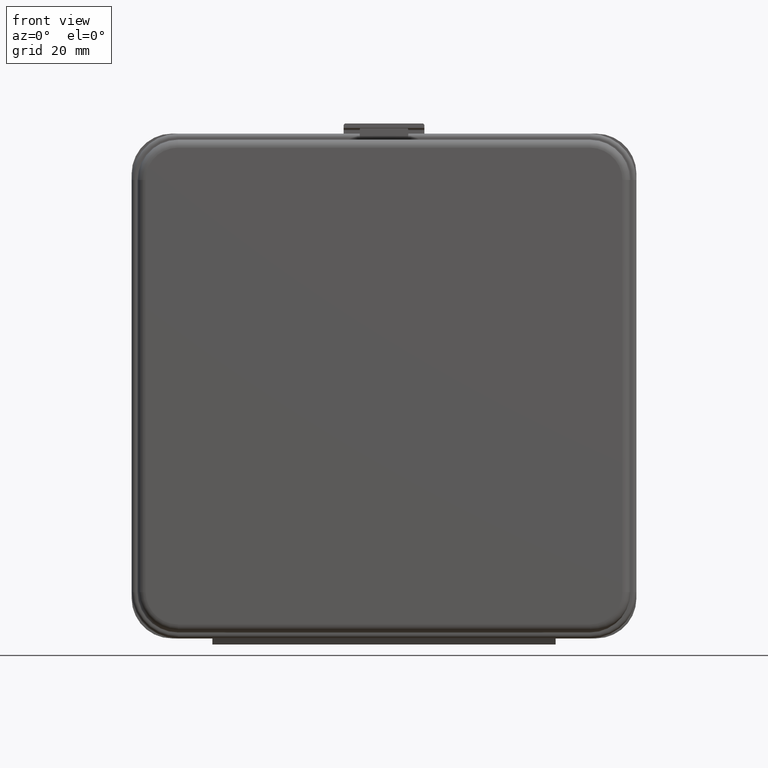
[diagram: clean part render]
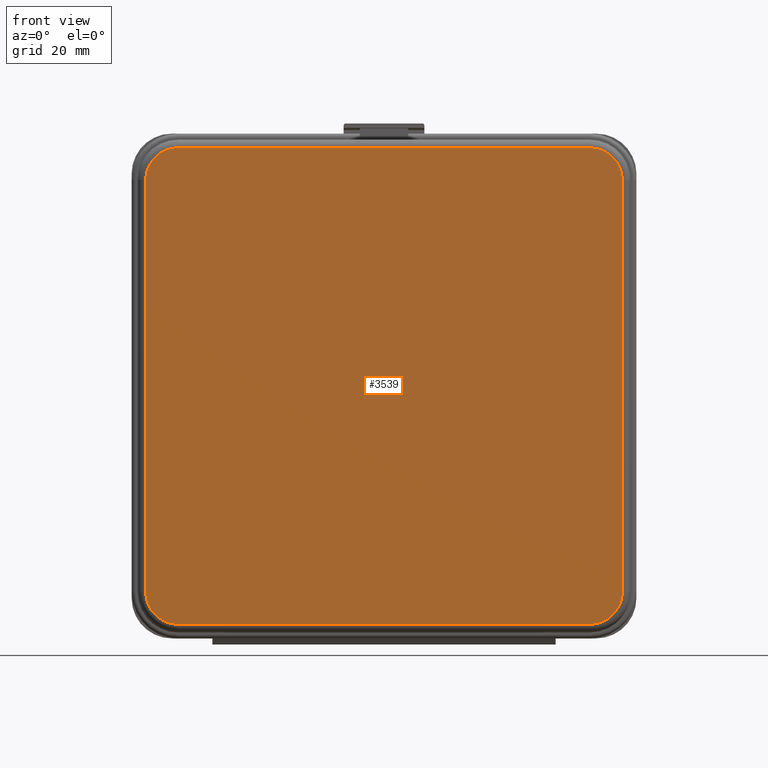
[diagram: same view with one face highlighted and labeled with its STEP entity id]
A machine part, front view. The second image highlights one B-rep face of the part: STEP entity #3539.
In plain terms, the highlighted planar face has unit normal (0, 1, 0).
Its self-contained STEP definition (entity closure, byte-faithful):
#35 = CARTESIAN_POINT ( 'NONE',  ( 0.0000000000000000000, 0.0000000000000000000, 0.0000000000000000000 ) ) ;
#42 = VERTEX_POINT ( 'NONE', #571 ) ;
#63 = CARTESIAN_POINT ( 'NONE',  ( 51.00000000000003553, 0.0000000000000000000, 59.00000000000000000 ) ) ;
#65 = CARTESIAN_POINT ( 'NONE',  ( 0.0000000000000000000, 0.0000000000000000000, -59.00000000000000000 ) ) ;
#197 = CARTESIAN_POINT ( 'NONE',  ( -51.00000000000000000, 0.0000000000000000000, -59.00000000000000000 ) ) ;
#212 = DIRECTION ( 'NONE',  ( 0.0000000000000000000, 0.0000000000000000000, 1.000000000000000000 ) ) ;
#247 = VERTEX_POINT ( 'NONE', #4258 ) ;
#292 = EDGE_CURVE ( 'NONE', #4314, #42, #560, .T. ) ;
#315 = CARTESIAN_POINT ( 'NONE',  ( 51.00000000000000711, 0.0000000000000000000, -51.00000000000000000 ) ) ;
#423 = AXIS2_PLACEMENT_3D ( 'NONE', #789, #3544, #212 ) ;
#560 = LINE ( 'NONE', #951, #2782 ) ;
#562 = EDGE_CURVE ( 'NONE', #42, #3775, #3146, .T. ) ;
#568 = ORIENTED_EDGE ( 'NONE', *, *, #3683, .T. ) ;
#571 = CARTESIAN_POINT ( 'NONE',  ( -50.99999999999997868, 0.0000000000000000000, 59.00000000000000000 ) ) ;
#703 = VECTOR ( 'NONE', #837, 1000.000000000000000 ) ;
#735 = DIRECTION ( 'NONE',  ( 0.0000000000000000000, 1.000000000000000000, 0.0000000000000000000 ) ) ;
#789 = CARTESIAN_POINT ( 'NONE',  ( -51.00000000000000000, 0.0000000000000000000, -51.00000000000000000 ) ) ;
#792 = ORIENTED_EDGE ( 'NONE', *, *, #885, .T. ) ;
#829 = AXIS2_PLACEMENT_3D ( 'NONE', #3105, #1789, #1443 ) ;
#837 = DIRECTION ( 'NONE',  ( 2.275047181608927151E-16, -0.0000000000000000000, 1.000000000000000000 ) ) ;
#858 = LINE ( 'NONE', #1869, #703 ) ;
#885 = EDGE_CURVE ( 'NONE', #3775, #2556, #2658, .T. ) ;
#938 = EDGE_CURVE ( 'NONE', #2556, #1856, #1822, .T. ) ;
#951 = CARTESIAN_POINT ( 'NONE',  ( 0.0000000000000000000, 0.0000000000000000000, 59.00000000000000000 ) ) ;
#999 = DIRECTION ( 'NONE',  ( -1.706285386206695733E-16, 0.0000000000000000000, -1.000000000000000000 ) ) ;
#1110 = VERTEX_POINT ( 'NONE', #3948 ) ;
#1205 = DIRECTION ( 'NONE',  ( -1.000000000000000000, 0.0000000000000000000, -0.0000000000000000000 ) ) ;
#1375 = ORIENTED_EDGE ( 'NONE', *, *, #562, .T. ) ;
#1443 = DIRECTION ( 'NONE',  ( 0.0000000000000000000, 0.0000000000000000000, 1.000000000000000000 ) ) ;
#1549 = DIRECTION ( 'NONE',  ( -2.602085213965210642E-15, 0.0000000000000000000, 1.000000000000000000 ) ) ;
#1588 = ORIENTED_EDGE ( 'NONE', *, *, #292, .T. ) ;
#1673 = DIRECTION ( 'NONE',  ( 1.000000000000000000, -0.0000000000000000000, -0.0000000000000000000 ) ) ;
#1678 = CIRCLE ( 'NONE', #4120, 8.000000000000000000 ) ;
#1681 = CARTESIAN_POINT ( 'NONE',  ( -59.00000000000000000, 0.0000000000000000000, -51.00000000000000000 ) ) ;
#1699 = EDGE_CURVE ( 'NONE', #1856, #1948, #3069, .T. ) ;
#1789 = DIRECTION ( 'NONE',  ( -0.0000000000000000000, -1.000000000000000000, -0.0000000000000000000 ) ) ;
#1822 = CIRCLE ( 'NONE', #423, 8.000000000000000000 ) ;
#1856 = VERTEX_POINT ( 'NONE', #197 ) ;
#1869 = CARTESIAN_POINT ( 'NONE',  ( 59.00000000000001421, 0.0000000000000000000, -1.342277837149267418E-14 ) ) ;
#1897 = CARTESIAN_POINT ( 'NONE',  ( 51.00000000000002842, 0.0000000000000000000, 50.99999999999999289 ) ) ;
#1935 = EDGE_LOOP ( 'NONE', ( #1588, #1375, #792, #3471, #3068, #4272, #2976, #568 ) ) ;
#1948 = VERTEX_POINT ( 'NONE', #2772 ) ;
#1950 = VECTOR ( 'NONE', #999, 1000.000000000000000 ) ;
#1988 = DIRECTION ( 'NONE',  ( -0.0000000000000000000, -1.000000000000000000, -0.0000000000000000000 ) ) ;
#2324 = VECTOR ( 'NONE', #1673, 1000.000000000000000 ) ;
#2376 = CIRCLE ( 'NONE', #2927, 8.000000000000000000 ) ;
#2556 = VERTEX_POINT ( 'NONE', #1681 ) ;
#2658 = LINE ( 'NONE', #4016, #1950 ) ;
#2746 = FACE_OUTER_BOUND ( 'NONE', #1935, .T. ) ;
#2772 = CARTESIAN_POINT ( 'NONE',  ( 51.00000000000000711, 0.0000000000000000000, -59.00000000000000000 ) ) ;
#2782 = VECTOR ( 'NONE', #1205, 1000.000000000000000 ) ;
#2927 = AXIS2_PLACEMENT_3D ( 'NONE', #1897, #3560, #1549 ) ;
#2942 = DIRECTION ( 'NONE',  ( 0.0000000000000000000, 0.0000000000000000000, 1.000000000000000000 ) ) ;
#2976 = ORIENTED_EDGE ( 'NONE', *, *, #4147, .T. ) ;
#3056 = DIRECTION ( 'NONE',  ( 0.0000000000000000000, -0.0000000000000000000, 1.000000000000000000 ) ) ;
#3068 = ORIENTED_EDGE ( 'NONE', *, *, #1699, .T. ) ;
#3069 = LINE ( 'NONE', #65, #2324 ) ;
#3080 = PLANE ( 'NONE',  #3223 ) ;
#3105 = CARTESIAN_POINT ( 'NONE',  ( -50.99999999999997868, 0.0000000000000000000, 51.00000000000000000 ) ) ;
#3146 = CIRCLE ( 'NONE', #829, 8.000000000000000000 ) ;
#3223 = AXIS2_PLACEMENT_3D ( 'NONE', #35, #735, #3056 ) ;
#3296 = EDGE_CURVE ( 'NONE', #1948, #1110, #1678, .T. ) ;
#3471 = ORIENTED_EDGE ( 'NONE', *, *, #938, .T. ) ;
#3539 = ADVANCED_FACE ( 'NONE', ( #2746 ), #3080, .F. ) ;
#3544 = DIRECTION ( 'NONE',  ( -0.0000000000000000000, -1.000000000000000000, -0.0000000000000000000 ) ) ;
#3560 = DIRECTION ( 'NONE',  ( -0.0000000000000000000, -1.000000000000000000, -0.0000000000000000000 ) ) ;
#3683 = EDGE_CURVE ( 'NONE', #247, #4314, #2376, .T. ) ;
#3775 = VERTEX_POINT ( 'NONE', #4151 ) ;
#3948 = CARTESIAN_POINT ( 'NONE',  ( 59.00000000000001421, 0.0000000000000000000, -51.00000000000000000 ) ) ;
#4016 = CARTESIAN_POINT ( 'NONE',  ( -58.99999999999999289, 0.0000000000000000000, 1.006708377861950248E-14 ) ) ;
#4120 = AXIS2_PLACEMENT_3D ( 'NONE', #315, #1988, #2942 ) ;
#4147 = EDGE_CURVE ( 'NONE', #1110, #247, #858, .T. ) ;
#4151 = CARTESIAN_POINT ( 'NONE',  ( -58.99999999999997868, 0.0000000000000000000, 50.99999999999999289 ) ) ;
#4258 = CARTESIAN_POINT ( 'NONE',  ( 59.00000000000002842, 0.0000000000000000000, 50.99999999999999289 ) ) ;
#4272 = ORIENTED_EDGE ( 'NONE', *, *, #3296, .T. ) ;
#4314 = VERTEX_POINT ( 'NONE', #63 ) ;